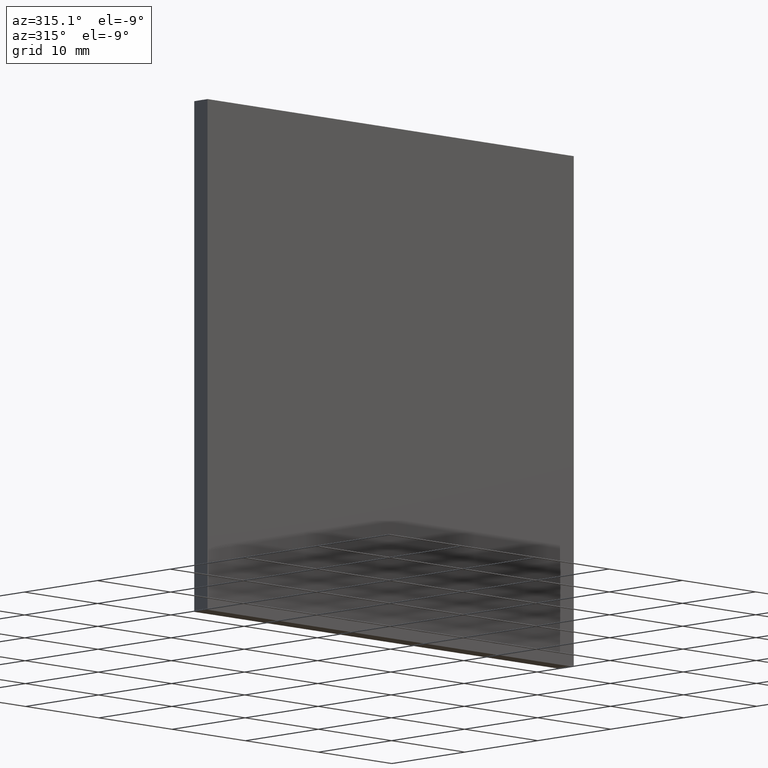
[diagram: clean part render]
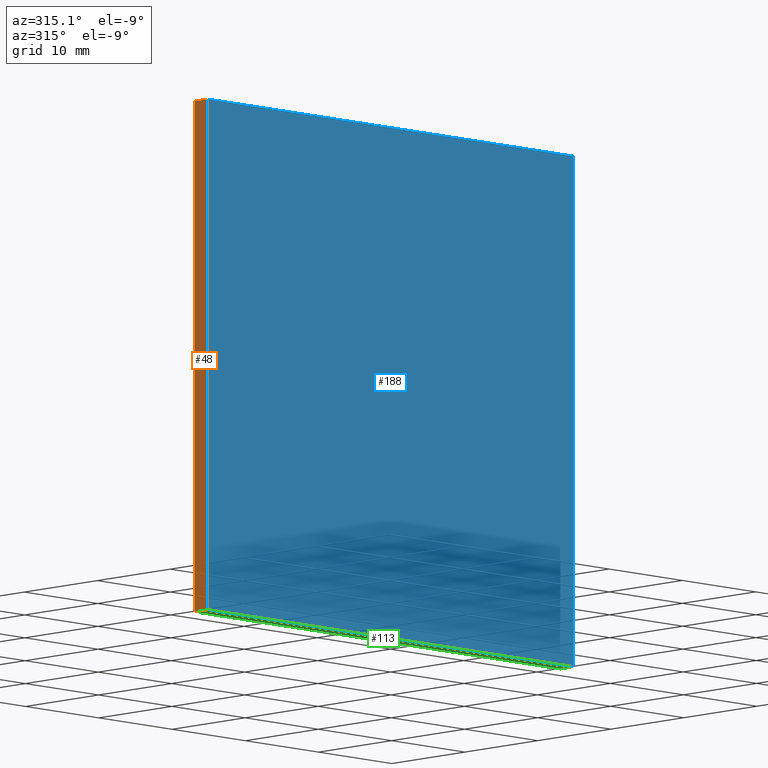
[diagram: same view with three faces highlighted in distinct colors, each labeled with its STEP entity id]
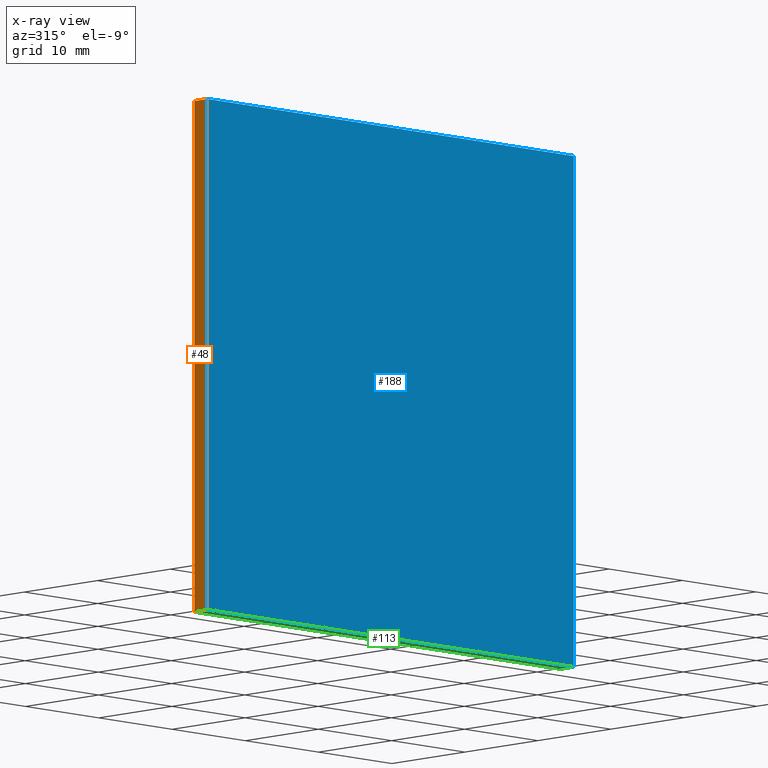
[diagram: x-ray of the same camera — body ghosted, the three highlighted faces saturated]
A machine part, auxiliary view with three faces highlighted in distinct colors.
The next image is the same camera in x-ray (body ghosted, the three faces saturated) — at least one of them is partly hidden behind the body in this view.
Their STEP definitions:

[orange] entity #48 — the highlighted planar face has unit normal (1, -0, 0).
#1 = EDGE_CURVE ( 'NONE', #117, #189, #4, .T. ) ;
#4 = LINE ( 'NONE', #49, #132 ) ;
#6 = CARTESIAN_POINT ( 'NONE',  ( -24.99999999999998900, 1.820000000000000100, -25.00000000000000400 ) ) ;
#11 = CARTESIAN_POINT ( 'NONE',  ( -24.99999999999998900, 1.820000000000000100, 24.99999999999999600 ) ) ;
#20 = DIRECTION ( 'NONE',  ( 1.000000000000000000, -0.0000000000000000000, 0.0000000000000000000 ) ) ;
#22 = VECTOR ( 'NONE', #59, 1000.000000000000000 ) ;
#27 = VERTEX_POINT ( 'NONE', #67 ) ;
#35 = VECTOR ( 'NONE', #138, 1000.000000000000000 ) ;
#48 = ADVANCED_FACE ( 'NONE', ( #85 ), #103, .F. ) ;
#49 = CARTESIAN_POINT ( 'NONE',  ( -24.99999999999998900, 1.820000000000000100, 24.99999999999999600 ) ) ;
#59 = DIRECTION ( 'NONE',  ( -0.0000000000000000000, -1.000000000000000000, -0.0000000000000000000 ) ) ;
#60 = LINE ( 'NONE', #6, #81 ) ;
#67 = CARTESIAN_POINT ( 'NONE',  ( -24.99999999999998900, 0.0000000000000000000, -25.00000000000000400 ) ) ;
#75 = CARTESIAN_POINT ( 'NONE',  ( -24.99999999999998900, 1.820000000000000100, 24.99999999999999600 ) ) ;
#77 = CARTESIAN_POINT ( 'NONE',  ( -24.99999999999998900, 1.820000000000000100, -25.00000000000000400 ) ) ;
#79 = ORIENTED_EDGE ( 'NONE', *, *, #106, .F. ) ;
#81 = VECTOR ( 'NONE', #191, 1000.000000000000000 ) ;
#82 = EDGE_LOOP ( 'NONE', ( #101, #79, #127, #158 ) ) ;
#85 = FACE_OUTER_BOUND ( 'NONE', #82, .T. ) ;
#92 = CARTESIAN_POINT ( 'NONE',  ( -24.99999999999998900, 1.820000000000000100, 24.99999999999999600 ) ) ;
#101 = ORIENTED_EDGE ( 'NONE', *, *, #139, .T. ) ;
#103 = PLANE ( 'NONE',  #131 ) ;
#106 = EDGE_CURVE ( 'NONE', #189, #124, #157, .T. ) ;
#117 = VERTEX_POINT ( 'NONE', #77 ) ;
#122 = EDGE_CURVE ( 'NONE', #117, #27, #60, .T. ) ;
#124 = VERTEX_POINT ( 'NONE', #167 ) ;
#125 = LINE ( 'NONE', #146, #35 ) ;
#127 = ORIENTED_EDGE ( 'NONE', *, *, #1, .F. ) ;
#131 = AXIS2_PLACEMENT_3D ( 'NONE', #92, #20, #183 ) ;
#132 = VECTOR ( 'NONE', #156, 1000.000000000000000 ) ;
#138 = DIRECTION ( 'NONE',  ( -0.0000000000000000000, -0.0000000000000000000, 1.000000000000000000 ) ) ;
#139 = EDGE_CURVE ( 'NONE', #27, #124, #125, .T. ) ;
#146 = CARTESIAN_POINT ( 'NONE',  ( -24.99999999999998900, 0.0000000000000000000, 24.99999999999999600 ) ) ;
#156 = DIRECTION ( 'NONE',  ( -0.0000000000000000000, -0.0000000000000000000, 1.000000000000000000 ) ) ;
#157 = LINE ( 'NONE', #11, #22 ) ;
#158 = ORIENTED_EDGE ( 'NONE', *, *, #122, .T. ) ;
#167 = CARTESIAN_POINT ( 'NONE',  ( -24.99999999999998900, 0.0000000000000000000, 24.99999999999999600 ) ) ;
#183 = DIRECTION ( 'NONE',  ( 0.0000000000000000000, 0.0000000000000000000, -1.000000000000000000 ) ) ;
#189 = VERTEX_POINT ( 'NONE', #75 ) ;
#191 = DIRECTION ( 'NONE',  ( -0.0000000000000000000, -1.000000000000000000, -0.0000000000000000000 ) ) ;

[blue] entity #188 — the highlighted planar face has unit normal (0, -1, 0).
#3 = DIRECTION ( 'NONE',  ( 0.0000000000000000000, 0.0000000000000000000, -1.000000000000000000 ) ) ;
#9 = EDGE_LOOP ( 'NONE', ( #43, #202, #24, #46 ) ) ;
#12 = CARTESIAN_POINT ( 'NONE',  ( -24.99999999999998900, 0.0000000000000000000, -25.00000000000000400 ) ) ;
#16 = AXIS2_PLACEMENT_3D ( 'NONE', #169, #185, #118 ) ;
#18 = CARTESIAN_POINT ( 'NONE',  ( 25.00000000000001100, 0.0000000000000000000, 24.99999999999999600 ) ) ;
#24 = ORIENTED_EDGE ( 'NONE', *, *, #139, .F. ) ;
#27 = VERTEX_POINT ( 'NONE', #67 ) ;
#35 = VECTOR ( 'NONE', #138, 1000.000000000000000 ) ;
#43 = ORIENTED_EDGE ( 'NONE', *, *, #200, .F. ) ;
#44 = VECTOR ( 'NONE', #108, 1000.000000000000000 ) ;
#46 = ORIENTED_EDGE ( 'NONE', *, *, #91, .F. ) ;
#64 = CARTESIAN_POINT ( 'NONE',  ( 25.00000000000001100, 0.0000000000000000000, 24.99999999999999600 ) ) ;
#67 = CARTESIAN_POINT ( 'NONE',  ( -24.99999999999998900, 0.0000000000000000000, -25.00000000000000400 ) ) ;
#72 = LINE ( 'NONE', #192, #44 ) ;
#84 = VECTOR ( 'NONE', #3, 1000.000000000000000 ) ;
#91 = EDGE_CURVE ( 'NONE', #137, #27, #163, .T. ) ;
#108 = DIRECTION ( 'NONE',  ( 1.000000000000000000, 0.0000000000000000000, 0.0000000000000000000 ) ) ;
#110 = EDGE_CURVE ( 'NONE', #124, #143, #72, .T. ) ;
#116 = DIRECTION ( 'NONE',  ( -1.000000000000000000, -0.0000000000000000000, -0.0000000000000000000 ) ) ;
#118 = DIRECTION ( 'NONE',  ( 0.0000000000000000000, -0.0000000000000000000, -1.000000000000000000 ) ) ;
#124 = VERTEX_POINT ( 'NONE', #167 ) ;
#125 = LINE ( 'NONE', #146, #35 ) ;
#135 = CARTESIAN_POINT ( 'NONE',  ( 25.00000000000001100, 0.0000000000000000000, -25.00000000000000400 ) ) ;
#137 = VERTEX_POINT ( 'NONE', #135 ) ;
#138 = DIRECTION ( 'NONE',  ( -0.0000000000000000000, -0.0000000000000000000, 1.000000000000000000 ) ) ;
#139 = EDGE_CURVE ( 'NONE', #27, #124, #125, .T. ) ;
#143 = VERTEX_POINT ( 'NONE', #18 ) ;
#146 = CARTESIAN_POINT ( 'NONE',  ( -24.99999999999998900, 0.0000000000000000000, 24.99999999999999600 ) ) ;
#163 = LINE ( 'NONE', #12, #168 ) ;
#167 = CARTESIAN_POINT ( 'NONE',  ( -24.99999999999998900, 0.0000000000000000000, 24.99999999999999600 ) ) ;
#168 = VECTOR ( 'NONE', #116, 1000.000000000000000 ) ;
#169 = CARTESIAN_POINT ( 'NONE',  ( 0.0000000000000000000, 0.0000000000000000000, 0.0000000000000000000 ) ) ;
#172 = LINE ( 'NONE', #64, #84 ) ;
#177 = PLANE ( 'NONE',  #16 ) ;
#185 = DIRECTION ( 'NONE',  ( 0.0000000000000000000, -1.000000000000000000, 0.0000000000000000000 ) ) ;
#188 = ADVANCED_FACE ( 'NONE', ( #201 ), #177, .T. ) ;
#192 = CARTESIAN_POINT ( 'NONE',  ( -24.99999999999998900, 0.0000000000000000000, 24.99999999999999600 ) ) ;
#200 = EDGE_CURVE ( 'NONE', #143, #137, #172, .T. ) ;
#201 = FACE_OUTER_BOUND ( 'NONE', #9, .T. ) ;
#202 = ORIENTED_EDGE ( 'NONE', *, *, #110, .F. ) ;

[green] entity #113 — the highlighted planar face has unit normal (0, 0, 1).
#5 = DIRECTION ( 'NONE',  ( -0.0000000000000000000, -1.000000000000000000, -0.0000000000000000000 ) ) ;
#6 = CARTESIAN_POINT ( 'NONE',  ( -24.99999999999998900, 1.820000000000000100, -25.00000000000000400 ) ) ;
#12 = CARTESIAN_POINT ( 'NONE',  ( -24.99999999999998900, 0.0000000000000000000, -25.00000000000000400 ) ) ;
#21 = DIRECTION ( 'NONE',  ( 0.0000000000000000000, 0.0000000000000000000, 1.000000000000000000 ) ) ;
#27 = VERTEX_POINT ( 'NONE', #67 ) ;
#33 = ORIENTED_EDGE ( 'NONE', *, *, #160, .T. ) ;
#34 = CARTESIAN_POINT ( 'NONE',  ( 25.00000000000001100, 1.820000000000000100, -25.00000000000000400 ) ) ;
#45 = VECTOR ( 'NONE', #184, 1000.000000000000000 ) ;
#51 = LINE ( 'NONE', #151, #45 ) ;
#60 = LINE ( 'NONE', #6, #81 ) ;
#66 = CARTESIAN_POINT ( 'NONE',  ( 25.00000000000001100, 1.820000000000000100, -25.00000000000000400 ) ) ;
#67 = CARTESIAN_POINT ( 'NONE',  ( -24.99999999999998900, 0.0000000000000000000, -25.00000000000000400 ) ) ;
#77 = CARTESIAN_POINT ( 'NONE',  ( -24.99999999999998900, 1.820000000000000100, -25.00000000000000400 ) ) ;
#78 = CARTESIAN_POINT ( 'NONE',  ( -24.99999999999998900, 1.820000000000000100, -25.00000000000000400 ) ) ;
#81 = VECTOR ( 'NONE', #191, 1000.000000000000000 ) ;
#83 = AXIS2_PLACEMENT_3D ( 'NONE', #78, #21, #86 ) ;
#86 = DIRECTION ( 'NONE',  ( 1.000000000000000000, 0.0000000000000000000, -0.0000000000000000000 ) ) ;
#88 = PLANE ( 'NONE',  #83 ) ;
#91 = EDGE_CURVE ( 'NONE', #137, #27, #163, .T. ) ;
#96 = EDGE_LOOP ( 'NONE', ( #178, #107, #162, #33 ) ) ;
#102 = LINE ( 'NONE', #34, #175 ) ;
#107 = ORIENTED_EDGE ( 'NONE', *, *, #122, .F. ) ;
#113 = ADVANCED_FACE ( 'NONE', ( #174 ), #88, .F. ) ;
#115 = EDGE_CURVE ( 'NONE', #145, #117, #51, .T. ) ;
#116 = DIRECTION ( 'NONE',  ( -1.000000000000000000, -0.0000000000000000000, -0.0000000000000000000 ) ) ;
#117 = VERTEX_POINT ( 'NONE', #77 ) ;
#122 = EDGE_CURVE ( 'NONE', #117, #27, #60, .T. ) ;
#135 = CARTESIAN_POINT ( 'NONE',  ( 25.00000000000001100, 0.0000000000000000000, -25.00000000000000400 ) ) ;
#137 = VERTEX_POINT ( 'NONE', #135 ) ;
#145 = VERTEX_POINT ( 'NONE', #66 ) ;
#151 = CARTESIAN_POINT ( 'NONE',  ( -24.99999999999998900, 1.820000000000000100, -25.00000000000000400 ) ) ;
#160 = EDGE_CURVE ( 'NONE', #145, #137, #102, .T. ) ;
#162 = ORIENTED_EDGE ( 'NONE', *, *, #115, .F. ) ;
#163 = LINE ( 'NONE', #12, #168 ) ;
#168 = VECTOR ( 'NONE', #116, 1000.000000000000000 ) ;
#174 = FACE_OUTER_BOUND ( 'NONE', #96, .T. ) ;
#175 = VECTOR ( 'NONE', #5, 1000.000000000000000 ) ;
#178 = ORIENTED_EDGE ( 'NONE', *, *, #91, .T. ) ;
#184 = DIRECTION ( 'NONE',  ( -1.000000000000000000, -0.0000000000000000000, -0.0000000000000000000 ) ) ;
#191 = DIRECTION ( 'NONE',  ( -0.0000000000000000000, -1.000000000000000000, -0.0000000000000000000 ) ) ;